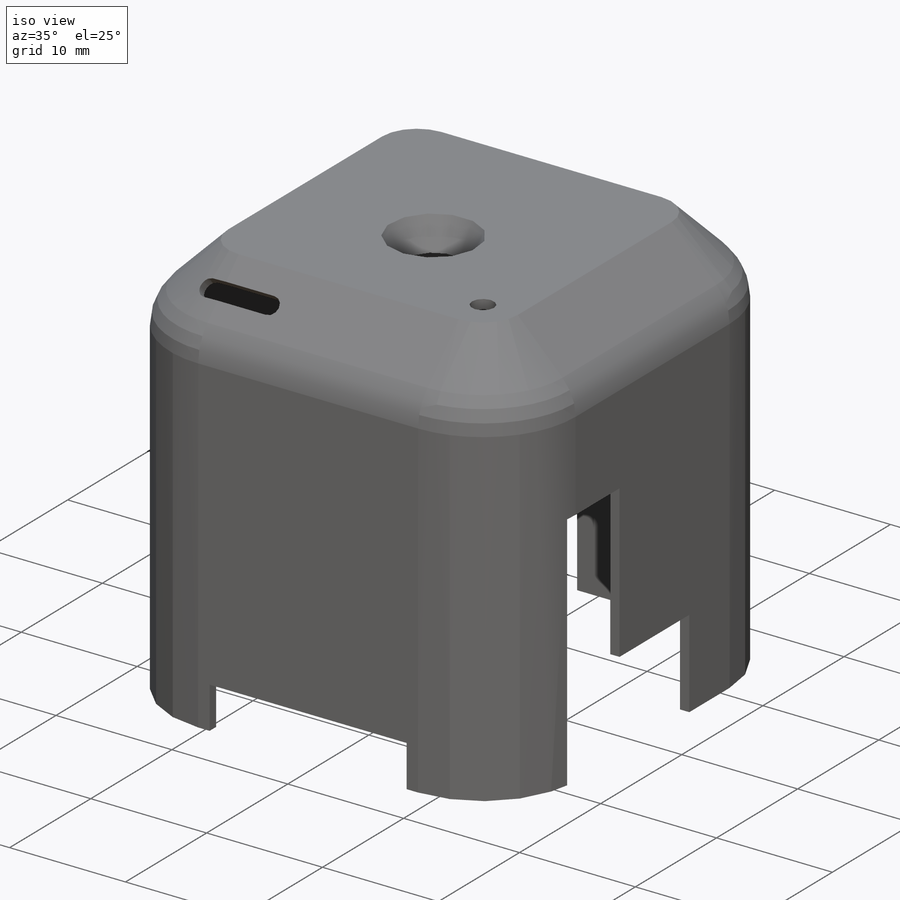
[diagram: iso view]
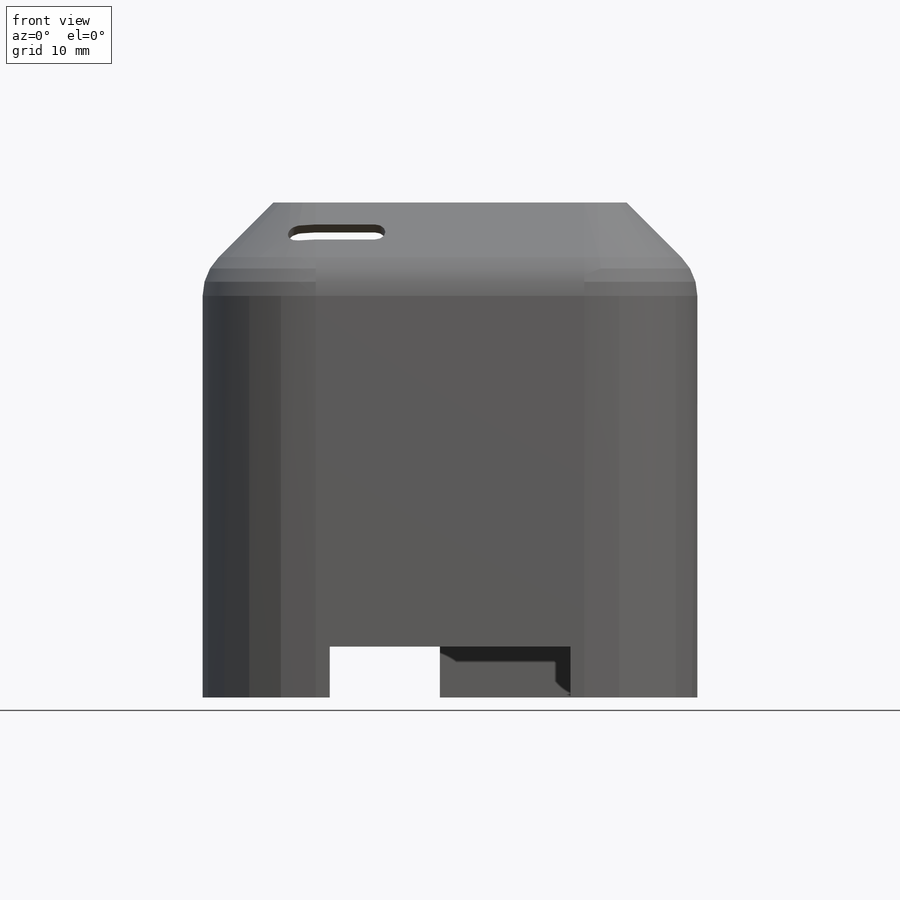
[diagram: front view]
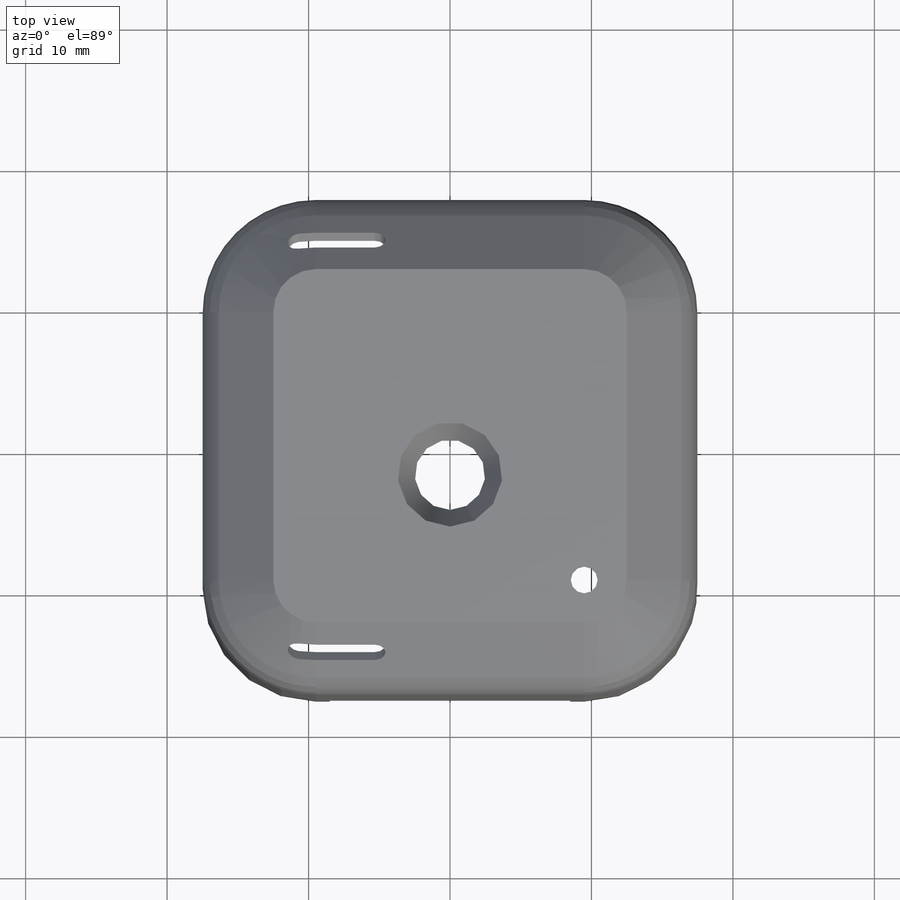
[diagram: top view]
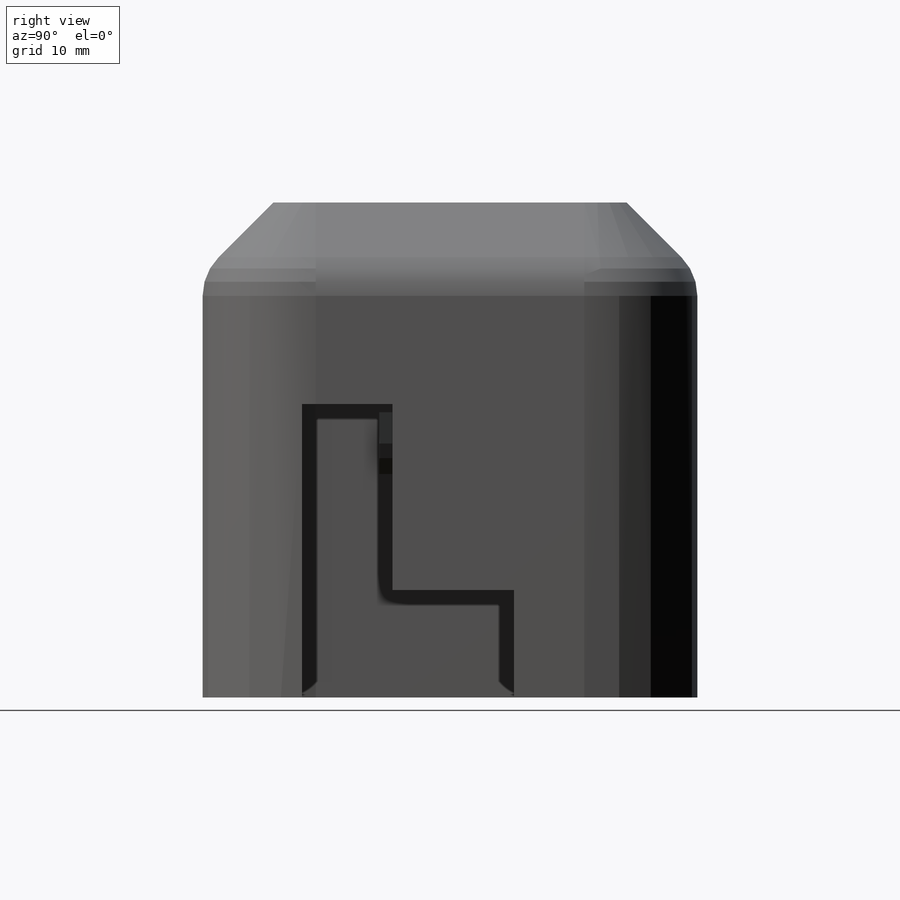
[diagram: right view]
SOLIDWORKS PART (.sldprt)
format: sldprt  version: not decoded by parser v0  size: 382,464 bytes
history: native  units: mm
features: sketch x10, cut_extrude x7, extrude x3, mirror x2, material x1, chamfer x1, fillet x1, shell x1 (+13 scaffold rows collapsed)
feature tree (39):
  scaffold x13  (default folders/planes/origin — collapsed)
  material  "Material <not specified>"
  sketch  "Sketch1"  dims[D2=8.0mm D1=~34.975387mm]
  extrude  "Boss-Extrude1"  Depth=35mm
  chamfer  "Chamfer1"  Distance=5mm Angle=45deg
  fillet  "Fillet1"  Radius=3.882095mm
  shell  "Shell1"  Thickness=0.8mm
  sketch  "Sketch2"  dims[D1=8.6mm]
  cut_extrude  "Cut-Extrude1"  [1 undecoded]
  sketch  "Sketch3"  dims[D1=17.0mm D2=3.6mm]
  cut_extrude  "Cut-Extrude2"  [1 undecoded]
  sketch  "Sketch4"  dims[D1=13.8mm D2=18.0mm]
  cut_extrude  "Cut-Extrude3"  [1 undecoded]
  sketch  "Sketch5"  dims[D1=2.0mm]
  extrude  "Boss-Extrude2"  Depth=2mm
  mirror  "Mirror1"
  sketch  "Sketch6"  dims[D1=9.0mm]
  extrude  "Boss-Extrude3"  Depth=2.5mm
  sketch  "Sketch7"  dims[D1=0.8mm]
  cut_extrude  "Cut-Extrude5"  Depth=4mm
  sketch  "Sketch8"
  cut_extrude  "Cut-Extrude6"  Depth=1mm
  sketch  "Sketch9"  dims[D1=1.5mm]
  cut_extrude  "Cut-Extrude7"  Depth=3mm
  mirror  "Mirror2"
  sketch  "Sketch10"  dims[D1=1.9mm]
  cut_extrude  "Cut-Extrude8"  Depth=2.5mm
decode coverage: 19 of 25 modeling features carry decoded parameters
note: ~ marks probable driven/reference dimensions
note: 3 parameter values undecoded
summary: no parameter record found for 3 features
note: suppression state not decoded; provenance and decode notes live in map.json
